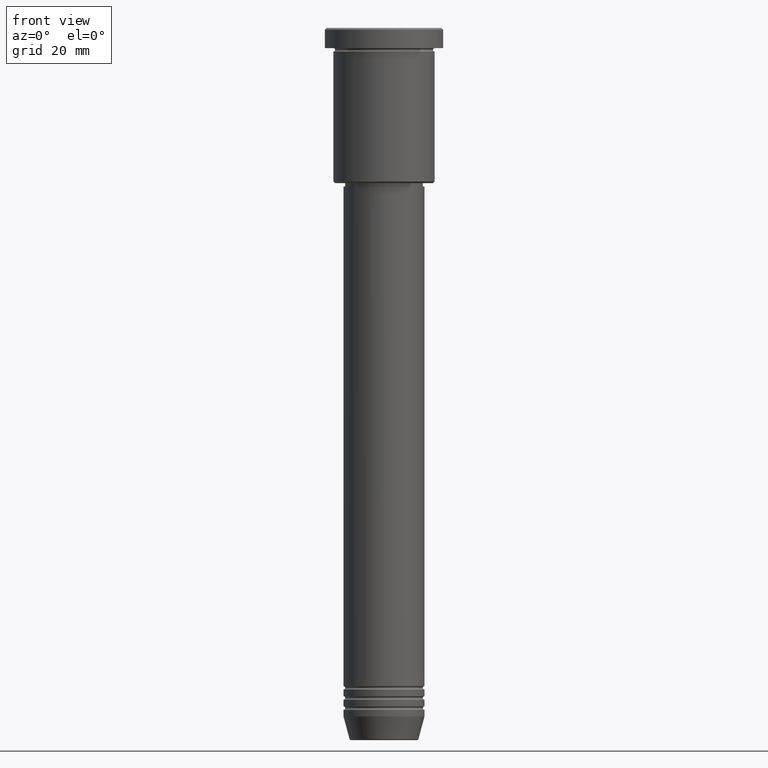
[diagram: clean part render]
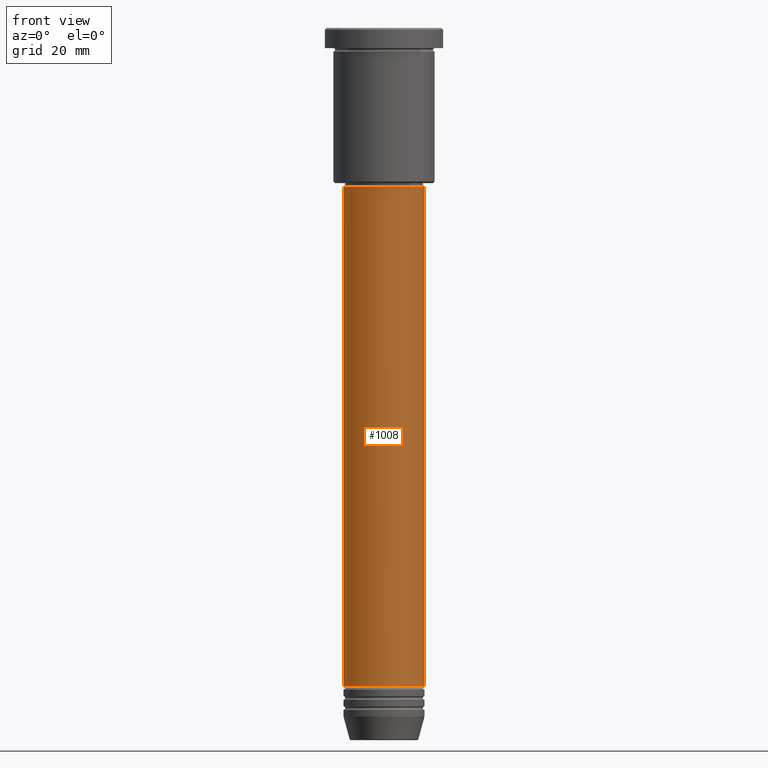
[diagram: same view with one face highlighted and labeled with its STEP entity id]
A machine part, front view. The second image highlights one B-rep face of the part: STEP entity #1008.
In plain terms, the highlighted cylindrical surface (partial cylindrical patch) has radius 12 mm, axis along (-0, -0, 1).
Its self-contained STEP definition (entity closure, byte-faithful):
#45 = VECTOR ( 'NONE', #241, 1000.000000000000000 ) ;
#48 = CARTESIAN_POINT ( 'NONE',  ( 0.000000000000000000, 0.000000000000000000, -47.00000000000002132 ) ) ;
#76 = CARTESIAN_POINT ( 'NONE',  ( 12.00000000000000000, 0.000000000000000000, 0.000000000000000000 ) ) ;
#156 = FACE_OUTER_BOUND ( 'NONE', #806, .T. ) ;
#173 = ORIENTED_EDGE ( 'NONE', *, *, #535, .F. ) ;
#185 = DIRECTION ( 'NONE',  ( -0.000000000000000000, -0.000000000000000000, 1.000000000000000000 ) ) ;
#214 = VERTEX_POINT ( 'NONE', #978 ) ;
#226 = ORIENTED_EDGE ( 'NONE', *, *, #568, .F. ) ;
#241 = DIRECTION ( 'NONE',  ( -0.000000000000000000, -0.000000000000000000, 1.000000000000000000 ) ) ;
#244 = CARTESIAN_POINT ( 'NONE',  ( 0.000000000000000000, 0.000000000000000000, 0.000000000000000000 ) ) ;
#284 = VERTEX_POINT ( 'NONE', #542 ) ;
#306 = EDGE_CURVE ( 'NONE', #435, #214, #835, .T. ) ;
#313 = DIRECTION ( 'NONE',  ( 1.000000000000000000, 0.000000000000000000, 0.000000000000000000 ) ) ;
#319 = AXIS2_PLACEMENT_3D ( 'NONE', #244, #860, #412 ) ;
#349 = CIRCLE ( 'NONE', #938, 12.00000000000000000 ) ;
#391 = CARTESIAN_POINT ( 'NONE',  ( 12.00000000000000000, 0.000000000000000000, -195.0000000000000000 ) ) ;
#412 = DIRECTION ( 'NONE',  ( 1.000000000000000000, 0.000000000000000000, 0.000000000000000000 ) ) ;
#413 = LINE ( 'NONE', #603, #45 ) ;
#435 = VERTEX_POINT ( 'NONE', #391 ) ;
#488 = CARTESIAN_POINT ( 'NONE',  ( -12.00000000000000000, 1.469576158976823947E-15, -47.00000000000002132 ) ) ;
#535 = EDGE_CURVE ( 'NONE', #284, #818, #413, .T. ) ;
#542 = CARTESIAN_POINT ( 'NONE',  ( -12.00000000000000000, 1.469576158976823947E-15, -195.0000000000000000 ) ) ;
#561 = EDGE_CURVE ( 'NONE', #284, #435, #349, .T. ) ;
#568 = EDGE_CURVE ( 'NONE', #818, #214, #817, .T. ) ;
#603 = CARTESIAN_POINT ( 'NONE',  ( -12.00000000000000000, 1.469576158976823947E-15, 0.000000000000000000 ) ) ;
#669 = VECTOR ( 'NONE', #185, 1000.000000000000000 ) ;
#806 = EDGE_LOOP ( 'NONE', ( #173, #1037, #831, #226 ) ) ;
#817 = CIRCLE ( 'NONE', #954, 12.00000000000000000 ) ;
#818 = VERTEX_POINT ( 'NONE', #488 ) ;
#831 = ORIENTED_EDGE ( 'NONE', *, *, #306, .T. ) ;
#835 = LINE ( 'NONE', #76, #669 ) ;
#855 = CYLINDRICAL_SURFACE ( 'NONE', #319, 12.00000000000000000 ) ;
#860 = DIRECTION ( 'NONE',  ( -0.000000000000000000, -0.000000000000000000, 1.000000000000000000 ) ) ;
#938 = AXIS2_PLACEMENT_3D ( 'NONE', #1136, #1143, #313 ) ;
#954 = AXIS2_PLACEMENT_3D ( 'NONE', #48, #1040, #1154 ) ;
#978 = CARTESIAN_POINT ( 'NONE',  ( 12.00000000000000000, 0.000000000000000000, -47.00000000000002132 ) ) ;
#1008 = ADVANCED_FACE ( 'NONE', ( #156 ), #855, .T. ) ;
#1037 = ORIENTED_EDGE ( 'NONE', *, *, #561, .T. ) ;
#1040 = DIRECTION ( 'NONE',  ( -0.000000000000000000, -0.000000000000000000, 1.000000000000000000 ) ) ;
#1136 = CARTESIAN_POINT ( 'NONE',  ( 0.000000000000000000, 0.000000000000000000, -195.0000000000000000 ) ) ;
#1143 = DIRECTION ( 'NONE',  ( -0.000000000000000000, -0.000000000000000000, 1.000000000000000000 ) ) ;
#1154 = DIRECTION ( 'NONE',  ( 1.000000000000000000, 0.000000000000000000, 0.000000000000000000 ) ) ;